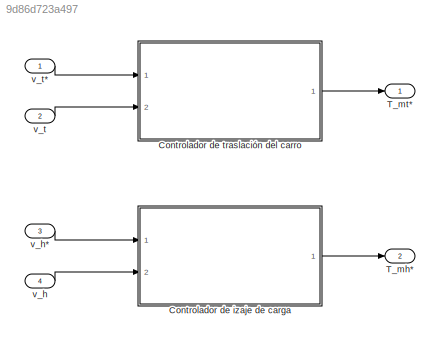
MODEL slx_9d86d723a497
KIND model
CONFIG AbsTol = auto
CONFIG EnableMultiTasking = off
CONFIG FixedStep = auto
CONFIG MaxStep = auto
CONFIG MinStep = auto
CONFIG RelTol = 1e-3
CONFIG SampleTimeConstraint = Unconstrained
CONFIG Solver = VariableStepAuto
CONFIG SolverName = VariableStepAuto
CONFIG StartTime = 0.0
CONFIG StopTime = 10.0
BLOCK [ModelReference] Controlador de izaje de carga
  ModelNameDialog = controlador_izaje.slx
  ModelReferenceVersion = 1.6
  Ports = [2, 1]
BLOCK [ModelReference] Controlador de traslación del carro
  ModelNameDialog = controlador_traslacion.slx
  ModelReferenceVersion = 1.5
  Ports = [2, 1]
BLOCK [Outport] T_mh*
  IconDisplay = Port number
  Port = 2
BLOCK [Outport] T_mt*
  IconDisplay = Port number
BLOCK [Inport] v_h
  IconDisplay = Port number
  Port = 4
BLOCK [Inport] v_h*
  IconDisplay = Port number
  Port = 3
BLOCK [Inport] v_t
  IconDisplay = Port number
  Port = 2
BLOCK [Inport] v_t*
  IconDisplay = Port number
LINE Controlador de izaje de carga:1 -> T_mh*:1
LINE Controlador de traslación del carro:1 -> T_mt*:1
LINE v_h*:1 -> Controlador de izaje de carga:1
LINE v_h:1 -> Controlador de izaje de carga:2
LINE v_t*:1 -> Controlador de traslación del carro:1
LINE v_t:1 -> Controlador de traslación del carro:2
